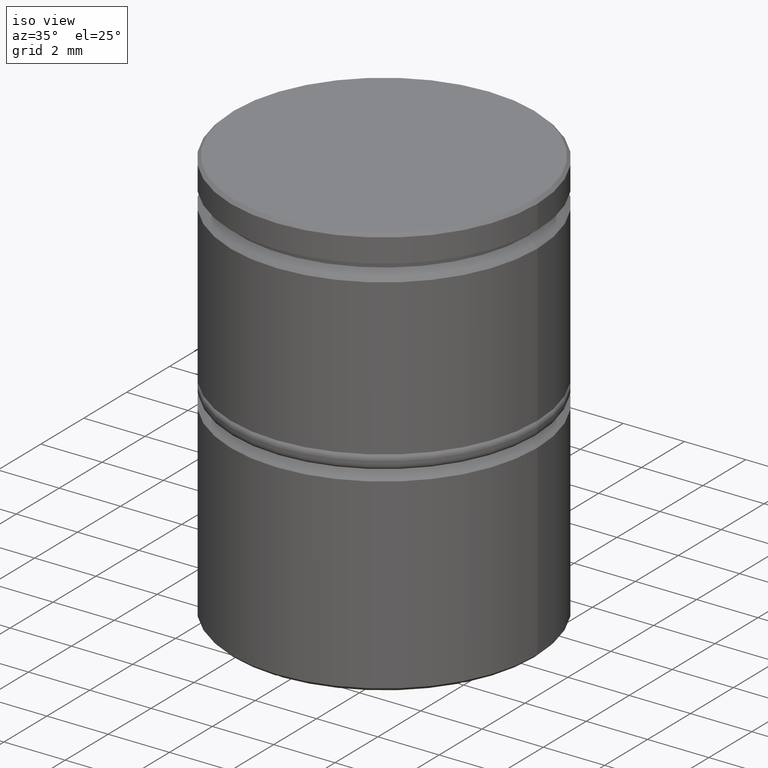
[diagram: clean part render]
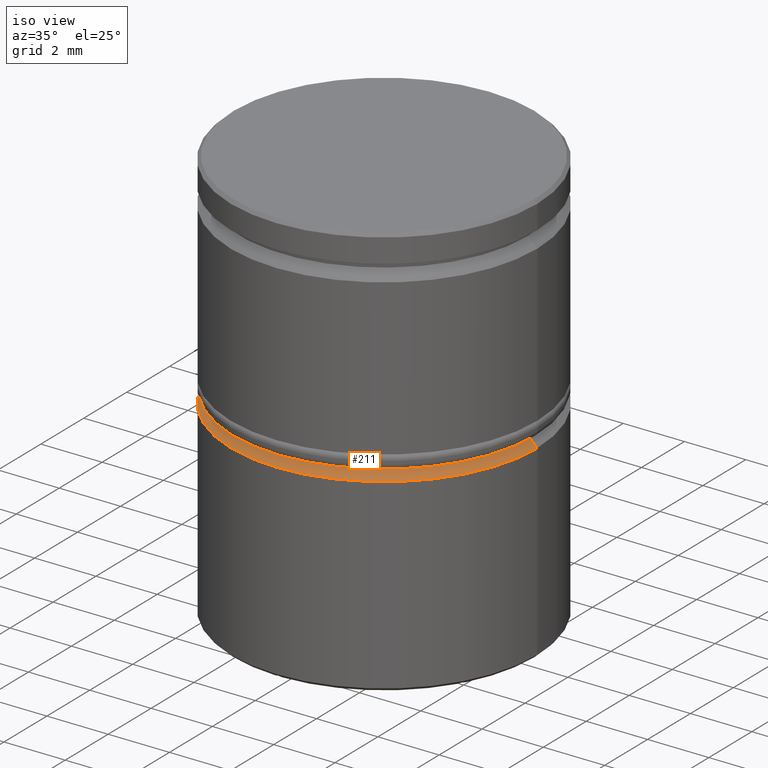
[diagram: same view with one face highlighted and labeled with its STEP entity id]
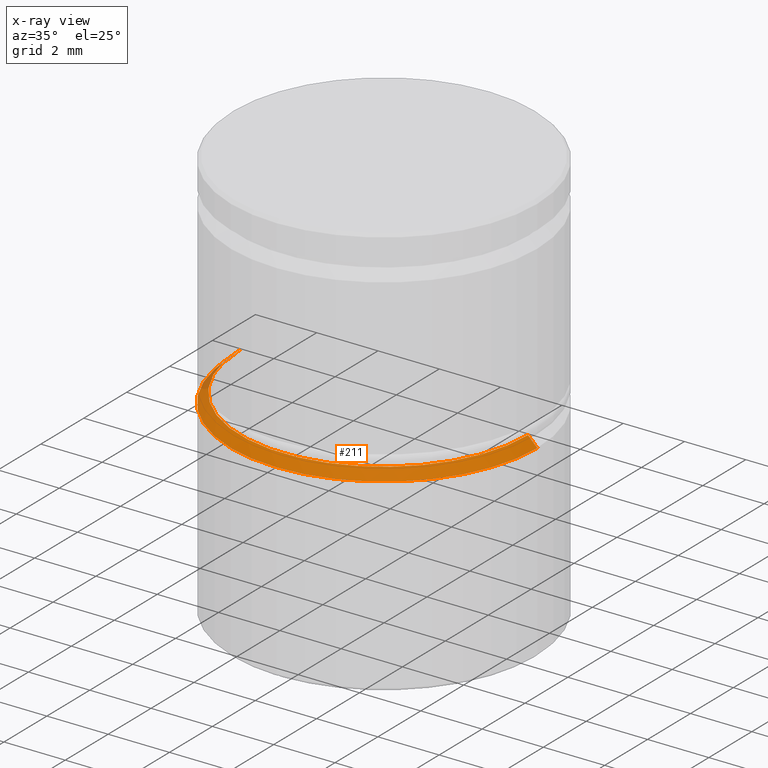
[diagram: x-ray of the same camera — body ghosted, the highlighted face saturated]
A machine part, iso view. The second image highlights one B-rep face of the part: STEP entity #211.
The next image is the same camera in x-ray: the body ghosted, the highlighted face saturated — about 2% of this face is hidden behind the body in this view.
In plain terms, the highlighted conical surface has half-angle 45 deg.
Its self-contained STEP definition (entity closure, byte-faithful):
#24 = CARTESIAN_POINT ( 'NONE',  ( -4.700000000000000178, 5.755839955992559655E-16, -6.999999999999999112 ) ) ;
#29 = CARTESIAN_POINT ( 'NONE',  ( 5.000000000000000000, 0.000000000000000000, -7.299999999999996270 ) ) ;
#39 = LINE ( 'NONE', #1118, #644 ) ;
#101 = DIRECTION ( 'NONE',  ( -1.000000000000000000, 0.000000000000000000, 0.000000000000000000 ) ) ;
#108 = CARTESIAN_POINT ( 'NONE',  ( 0.000000000000000000, 0.000000000000000000, -7.299999999999996270 ) ) ;
#164 = LINE ( 'NONE', #185, #575 ) ;
#185 = CARTESIAN_POINT ( 'NONE',  ( 4.700000000000002842, 5.755839955992563599E-16, -6.999999999999999112 ) ) ;
#208 = CARTESIAN_POINT ( 'NONE',  ( 0.000000000000000000, 0.000000000000000000, -6.999999999999999112 ) ) ;
#211 = ADVANCED_FACE ( 'NONE', ( #1165 ), #992, .T. ) ;
#217 = AXIS2_PLACEMENT_3D ( 'NONE', #356, #252, #1068 ) ;
#224 = ORIENTED_EDGE ( 'NONE', *, *, #544, .F. ) ;
#249 = EDGE_CURVE ( 'NONE', #250, #968, #164, .T. ) ;
#250 = VERTEX_POINT ( 'NONE', #924 ) ;
#252 = DIRECTION ( 'NONE',  ( -0.000000000000000000, -0.000000000000000000, 1.000000000000000000 ) ) ;
#356 = CARTESIAN_POINT ( 'NONE',  ( 0.000000000000000000, 0.000000000000000000, -6.999999999999999112 ) ) ;
#369 = CIRCLE ( 'NONE', #1283, 5.000000000000000000 ) ;
#407 = ORIENTED_EDGE ( 'NONE', *, *, #249, .F. ) ;
#468 = DIRECTION ( 'NONE',  ( -0.7071067811865474617, 0.000000000000000000, -0.7071067811865474617 ) ) ;
#535 = DIRECTION ( 'NONE',  ( 0.000000000000000000, 0.000000000000000000, -1.000000000000000000 ) ) ;
#544 = EDGE_CURVE ( 'NONE', #968, #705, #369, .T. ) ;
#575 = VECTOR ( 'NONE', #788, 1000.000000000000114 ) ;
#601 = CARTESIAN_POINT ( 'NONE',  ( -5.000000000000000000, 6.123233995736766282E-16, -7.299999999999996270 ) ) ;
#644 = VECTOR ( 'NONE', #468, 1000.000000000000114 ) ;
#677 = EDGE_CURVE ( 'NONE', #944, #250, #816, .T. ) ;
#705 = VERTEX_POINT ( 'NONE', #601 ) ;
#738 = ORIENTED_EDGE ( 'NONE', *, *, #1044, .T. ) ;
#788 = DIRECTION ( 'NONE',  ( 0.7071067811865474617, 8.659560562354932858E-17, -0.7071067811865474617 ) ) ;
#816 = CIRCLE ( 'NONE', #217, 4.700000000000000178 ) ;
#924 = CARTESIAN_POINT ( 'NONE',  ( 4.700000000000000178, 0.000000000000000000, -6.999999999999999112 ) ) ;
#944 = VERTEX_POINT ( 'NONE', #24 ) ;
#958 = DIRECTION ( 'NONE',  ( 1.000000000000000000, 0.000000000000000000, 0.000000000000000000 ) ) ;
#968 = VERTEX_POINT ( 'NONE', #29 ) ;
#992 = CONICAL_SURFACE ( 'NONE', #1175, 4.700000000000002842, 0.7853981633974482790 ) ;
#1000 = EDGE_LOOP ( 'NONE', ( #407, #1379, #738, #224 ) ) ;
#1044 = EDGE_CURVE ( 'NONE', #944, #705, #39, .T. ) ;
#1056 = DIRECTION ( 'NONE',  ( 0.000000000000000000, 0.000000000000000000, -1.000000000000000000 ) ) ;
#1068 = DIRECTION ( 'NONE',  ( 1.000000000000000000, 0.000000000000000000, 0.000000000000000000 ) ) ;
#1118 = CARTESIAN_POINT ( 'NONE',  ( -4.700000000000002842, 0.000000000000000000, -6.999999999999999112 ) ) ;
#1165 = FACE_OUTER_BOUND ( 'NONE', #1000, .T. ) ;
#1175 = AXIS2_PLACEMENT_3D ( 'NONE', #208, #1056, #101 ) ;
#1283 = AXIS2_PLACEMENT_3D ( 'NONE', #108, #535, #958 ) ;
#1379 = ORIENTED_EDGE ( 'NONE', *, *, #677, .F. ) ;